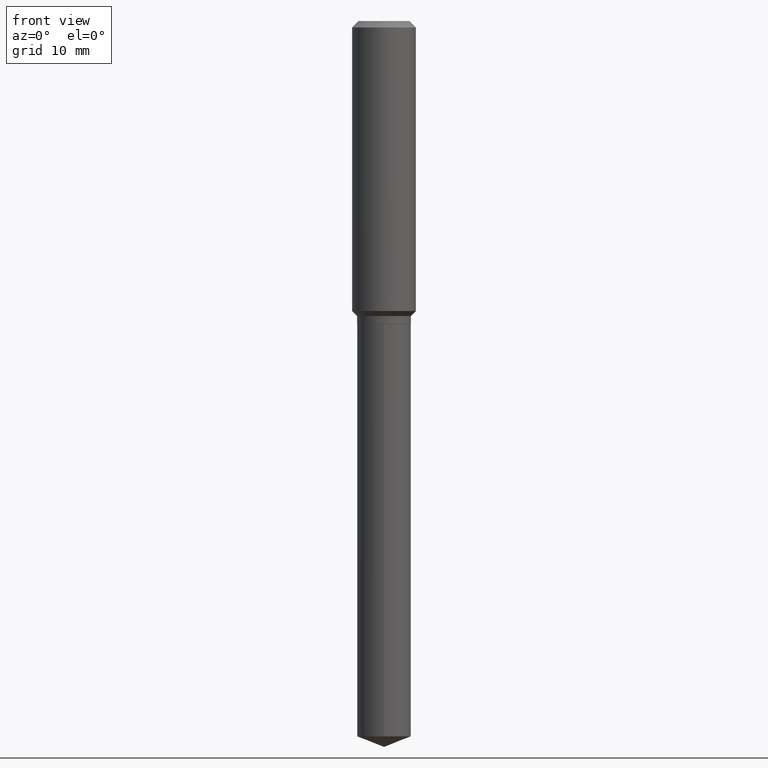
[diagram: clean part render]
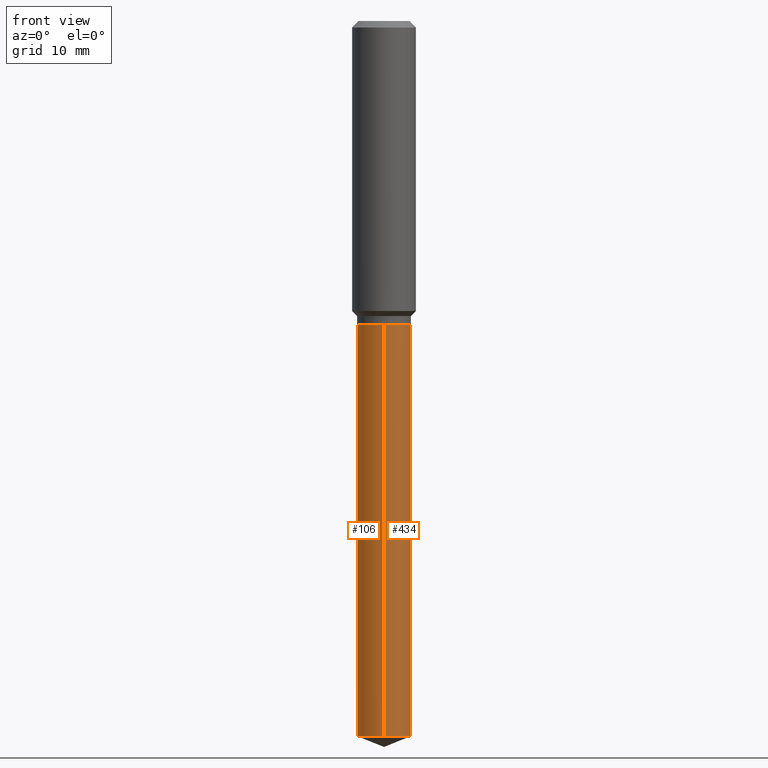
[diagram: same view with one multi-face feature highlighted, each face labeled with its STEP entity id]
A machine part, front view. The highlighted faces form ONE feature: a constant-radius fillet chain: 2 tangent blend faces with common blend radius 3.3744 mm. The faces share edges in the B-rep.
Their STEP definitions:
[1] entity #434 (Cylinder):
#2 = CIRCLE ( 'NONE', #308, 0.1328499999999999959 ) ;
#11 = VERTEX_POINT ( 'NONE', #306 ) ;
#22 = CARTESIAN_POINT ( 'NONE',  ( 3.659399521575438742E-29, -5.224652675444883351E-15, -1.496400000000000174 ) ) ;
#34 = EDGE_CURVE ( 'NONE', #140, #248, #316, .T. ) ;
#36 = DIRECTION ( 'NONE',  ( -6.982962677686265133E-15, -1.000000000000000000, 4.112680457153576388E-15 ) ) ;
#39 = VECTOR ( 'NONE', #329, 39.37007874015748143 ) ;
#73 = FACE_OUTER_BOUND ( 'NONE', #382, .T. ) ;
#115 = ORIENTED_EDGE ( 'NONE', *, *, #211, .F. ) ;
#140 = VERTEX_POINT ( 'NONE', #200 ) ;
#150 = LINE ( 'NONE', #181, #39 ) ;
#153 = ORIENTED_EDGE ( 'NONE', *, *, #226, .T. ) ;
#159 = CIRCLE ( 'NONE', #250, 0.1328499999999999959 ) ;
#176 = DIRECTION ( 'NONE',  ( -2.445483652818804664E-29, 3.491460077618715012E-15, 1.000000000000000000 ) ) ;
#180 = VERTEX_POINT ( 'NONE', #210 ) ;
#181 = CARTESIAN_POINT ( 'NONE',  ( -9.276865917305838410E-16, -0.1328500000000052139, -1.496399999999999730 ) ) ;
#200 = CARTESIAN_POINT ( 'NONE',  ( 9.439560244573794479E-16, 0.1328499999999876724, -3.530668993314555415 ) ) ;
#202 = CARTESIAN_POINT ( 'NONE',  ( 9.439560244573295524E-16, 0.1328499999999947778, -1.496400000000000841 ) ) ;
#210 = CARTESIAN_POINT ( 'NONE',  ( -9.276865917305339455E-16, -0.1328500000000123193, -3.530668993314554083 ) ) ;
#211 = EDGE_CURVE ( 'NONE', #11, #248, #2, .T. ) ;
#221 = CARTESIAN_POINT ( 'NONE',  ( 3.659399521575438742E-29, -5.224652675444883351E-15, -1.496400000000000174 ) ) ;
#226 = EDGE_CURVE ( 'NONE', #180, #140, #159, .T. ) ;
#248 = VERTEX_POINT ( 'NONE', #327 ) ;
#250 = AXIS2_PLACEMENT_3D ( 'NONE', #322, #278, #405 ) ;
#255 = ORIENTED_EDGE ( 'NONE', *, *, #274, .F. ) ;
#274 = EDGE_CURVE ( 'NONE', #180, #11, #150, .T. ) ;
#278 = DIRECTION ( 'NONE',  ( -2.445483652818804664E-29, 3.491460077618715012E-15, 1.000000000000000000 ) ) ;
#306 = CARTESIAN_POINT ( 'NONE',  ( -9.276865917305838410E-16, -0.1328500000000052139, -1.496399999999999730 ) ) ;
#308 = AXIS2_PLACEMENT_3D ( 'NONE', #22, #176, #442 ) ;
#316 = LINE ( 'NONE', #202, #356 ) ;
#322 = CARTESIAN_POINT ( 'NONE',  ( 8.634171090162348081E-29, -1.232722165274026422E-14, -3.530668993314554971 ) ) ;
#327 = CARTESIAN_POINT ( 'NONE',  ( 9.439560244573794479E-16, 0.1328499999999947501, -1.496400000000000841 ) ) ;
#329 = DIRECTION ( 'NONE',  ( -2.445483652818804384E-29, 3.491460077618715012E-15, 1.000000000000000000 ) ) ;
#356 = VECTOR ( 'NONE', #474, 39.37007874015748143 ) ;
#375 = DIRECTION ( 'NONE',  ( -2.445483652818804664E-29, 3.491460077618715012E-15, 1.000000000000000000 ) ) ;
#382 = EDGE_LOOP ( 'NONE', ( #153, #387, #115, #255 ) ) ;
#387 = ORIENTED_EDGE ( 'NONE', *, *, #34, .T. ) ;
#398 = AXIS2_PLACEMENT_3D ( 'NONE', #221, #375, #36 ) ;
#405 = DIRECTION ( 'NONE',  ( -6.982962677686265133E-15, -1.000000000000000000, 4.112680457153576388E-15 ) ) ;
#421 = CYLINDRICAL_SURFACE ( 'NONE', #398, 0.1328499999999999959 ) ;
#434 = ADVANCED_FACE ( 'NONE', ( #73 ), #421, .T. ) ;
#442 = DIRECTION ( 'NONE',  ( -6.982962677686265133E-15, -1.000000000000000000, 4.112680457153576388E-15 ) ) ;
#474 = DIRECTION ( 'NONE',  ( -2.445483652818804384E-29, 3.491460077618715012E-15, 1.000000000000000000 ) ) ;
[2] entity #106 (Cylinder):
#11 = VERTEX_POINT ( 'NONE', #306 ) ;
#15 = CIRCLE ( 'NONE', #446, 0.1328499999999999959 ) ;
#29 = ORIENTED_EDGE ( 'NONE', *, *, #392, .T. ) ;
#34 = EDGE_CURVE ( 'NONE', #140, #248, #316, .T. ) ;
#37 = ORIENTED_EDGE ( 'NONE', *, *, #274, .T. ) ;
#39 = VECTOR ( 'NONE', #329, 39.37007874015748143 ) ;
#106 = ADVANCED_FACE ( 'NONE', ( #357 ), #245, .T. ) ;
#131 = AXIS2_PLACEMENT_3D ( 'NONE', #282, #289, #445 ) ;
#140 = VERTEX_POINT ( 'NONE', #200 ) ;
#144 = AXIS2_PLACEMENT_3D ( 'NONE', #367, #489, #146 ) ;
#146 = DIRECTION ( 'NONE',  ( -6.982962677686265133E-15, -1.000000000000000000, 4.112680457153576388E-15 ) ) ;
#150 = LINE ( 'NONE', #181, #39 ) ;
#165 = CARTESIAN_POINT ( 'NONE',  ( 3.659399521575438742E-29, -5.224652675444883351E-15, -1.496400000000000174 ) ) ;
#177 = EDGE_LOOP ( 'NONE', ( #451, #29, #37, #182 ) ) ;
#180 = VERTEX_POINT ( 'NONE', #210 ) ;
#181 = CARTESIAN_POINT ( 'NONE',  ( -9.276865917305838410E-16, -0.1328500000000052139, -1.496399999999999730 ) ) ;
#182 = ORIENTED_EDGE ( 'NONE', *, *, #470, .F. ) ;
#200 = CARTESIAN_POINT ( 'NONE',  ( 9.439560244573794479E-16, 0.1328499999999876724, -3.530668993314555415 ) ) ;
#202 = CARTESIAN_POINT ( 'NONE',  ( 9.439560244573295524E-16, 0.1328499999999947778, -1.496400000000000841 ) ) ;
#210 = CARTESIAN_POINT ( 'NONE',  ( -9.276865917305339455E-16, -0.1328500000000123193, -3.530668993314554083 ) ) ;
#245 = CYLINDRICAL_SURFACE ( 'NONE', #131, 0.1328499999999999959 ) ;
#248 = VERTEX_POINT ( 'NONE', #327 ) ;
#264 = CIRCLE ( 'NONE', #144, 0.1328499999999999959 ) ;
#274 = EDGE_CURVE ( 'NONE', #180, #11, #150, .T. ) ;
#282 = CARTESIAN_POINT ( 'NONE',  ( 3.659399521575438742E-29, -5.224652675444883351E-15, -1.496400000000000174 ) ) ;
#289 = DIRECTION ( 'NONE',  ( -2.445483652818804664E-29, 3.491460077618715012E-15, 1.000000000000000000 ) ) ;
#306 = CARTESIAN_POINT ( 'NONE',  ( -9.276865917305838410E-16, -0.1328500000000052139, -1.496399999999999730 ) ) ;
#307 = DIRECTION ( 'NONE',  ( -2.445483652818804664E-29, 3.491460077618715012E-15, 1.000000000000000000 ) ) ;
#316 = LINE ( 'NONE', #202, #356 ) ;
#327 = CARTESIAN_POINT ( 'NONE',  ( 9.439560244573794479E-16, 0.1328499999999947501, -1.496400000000000841 ) ) ;
#329 = DIRECTION ( 'NONE',  ( -2.445483652818804384E-29, 3.491460077618715012E-15, 1.000000000000000000 ) ) ;
#343 = DIRECTION ( 'NONE',  ( -6.982962677686265133E-15, -1.000000000000000000, 4.112680457153576388E-15 ) ) ;
#356 = VECTOR ( 'NONE', #474, 39.37007874015748143 ) ;
#357 = FACE_OUTER_BOUND ( 'NONE', #177, .T. ) ;
#367 = CARTESIAN_POINT ( 'NONE',  ( 8.634171090162348081E-29, -1.232722165274026422E-14, -3.530668993314554971 ) ) ;
#392 = EDGE_CURVE ( 'NONE', #140, #180, #264, .T. ) ;
#445 = DIRECTION ( 'NONE',  ( -6.982962677686265133E-15, -1.000000000000000000, 4.112680457153576388E-15 ) ) ;
#446 = AXIS2_PLACEMENT_3D ( 'NONE', #165, #307, #343 ) ;
#451 = ORIENTED_EDGE ( 'NONE', *, *, #34, .F. ) ;
#470 = EDGE_CURVE ( 'NONE', #248, #11, #15, .T. ) ;
#474 = DIRECTION ( 'NONE',  ( -2.445483652818804384E-29, 3.491460077618715012E-15, 1.000000000000000000 ) ) ;
#489 = DIRECTION ( 'NONE',  ( -2.445483652818804664E-29, 3.491460077618715012E-15, 1.000000000000000000 ) ) ;